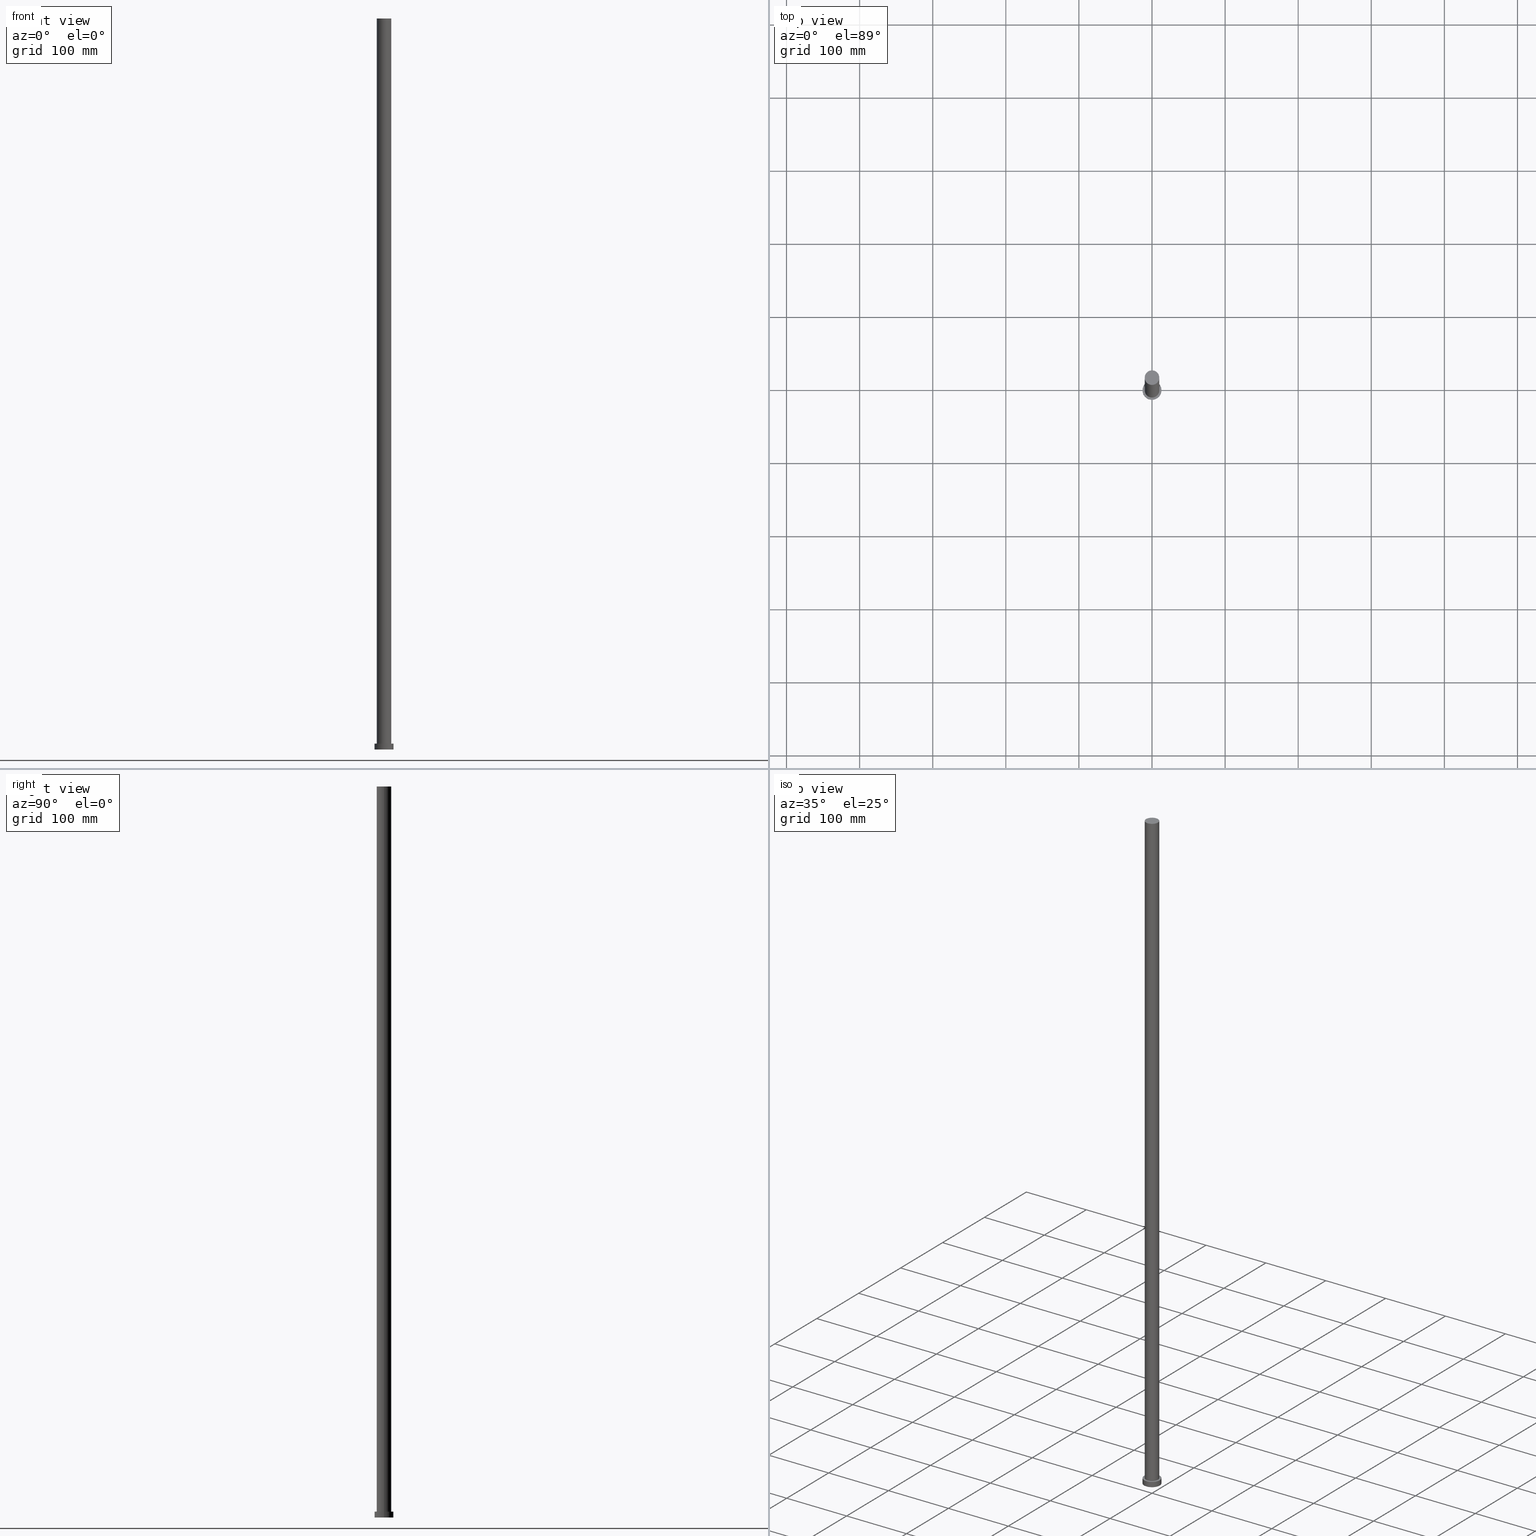
[diagram: canonical four-view strip — front | top / right | iso, engineering-drawing reading convention]
A machine part, canonical four-view strip (front | top / right | iso — engineering-drawing reading convention). The complete STEP part file that produces these views, byte-faithful:
ISO-10303-21;
HEADER;
FILE_DESCRIPTION (( 'STEP AP203' ),
    '1' );
FILE_NAME ('5cee.STEP',
    '2023-02-12T10:31:24',
    ( '' ),
    ( '' ),
    'SwSTEP 2.0',
    'SolidWorks 2019',
    '' );
FILE_SCHEMA (( 'CONFIG_CONTROL_DESIGN' ));
ENDSEC;

DATA;
#1 = AXIS2_PLACEMENT_3D ( 'NONE', #79, #9, #141 ) ;
#2 = FACE_OUTER_BOUND ( 'NONE', #104, .T. ) ;
#3 = LINE ( 'NONE', #207, #132 ) ;
#4 = APPROVAL_STATUS ( 'not_yet_approved' ) ;
#5 = APPLICATION_CONTEXT ( 'configuration controlled 3d designs of mechanical parts and assemblies' ) ;
#6 = DIRECTION ( 'NONE',  ( 1.000000000000000000, 0.000000000000000000, 0.000000000000000000 ) ) ;
#7 =( NAMED_UNIT ( * ) PLANE_ANGLE_UNIT ( ) SI_UNIT ( $, .RADIAN. ) );
#8 = PRODUCT_DEFINITION_FORMATION_WITH_SPECIFIED_SOURCE ( 'LIBOVOLN�', '', #222, .NOT_KNOWN. ) ;
#9 = DIRECTION ( 'NONE',  ( -0.000000000000000000, -0.000000000000000000, -1.000000000000000000 ) ) ;
#10 = CC_DESIGN_DATE_AND_TIME_ASSIGNMENT ( #100, #11, ( #211 ) ) ;
#11 = DATE_TIME_ROLE ( 'creation_date' ) ;
#12 = CARTESIAN_POINT ( 'NONE',  ( 0.000000000000000000, 0.000000000000000000, 8.000000000000000000 ) ) ;
#13 = CARTESIAN_POINT ( 'NONE',  ( 13.00000000000000178, 1.592040838891559293E-15, 0.000000000000000000 ) ) ;
#14 = VECTOR ( 'NONE', #244, 1000.000000000000000 ) ;
#15 = PLANE ( 'NONE',  #250 ) ;
#16 = CARTESIAN_POINT ( 'NONE',  ( -10.00000000000000000, 0.000000000000000000, 1000.000000000000000 ) ) ;
#17 = ORIENTED_EDGE ( 'NONE', *, *, #34, .T. ) ;
#18 = VECTOR ( 'NONE', #242, 1000.000000000000000 ) ;
#19 = EDGE_LOOP ( 'NONE', ( #36, #111 ) ) ;
#20 = DIRECTION ( 'NONE',  ( 0.000000000000000000, 0.000000000000000000, 1.000000000000000000 ) ) ;
#21 = CC_DESIGN_PERSON_AND_ORGANIZATION_ASSIGNMENT ( #160, #131, ( #222 ) ) ;
#22 = ORIENTED_EDGE ( 'NONE', *, *, #89, .F. ) ;
#23 = PERSON_AND_ORGANIZATION ( #213, #173 ) ;
#24 = AXIS2_PLACEMENT_3D ( 'NONE', #139, #47, #115 ) ;
#25 = CC_DESIGN_APPROVAL ( #93, ( #211 ) ) ;
#26 = LINE ( 'NONE', #166, #14 ) ;
#27 = PERSON_AND_ORGANIZATION ( #213, #173 ) ;
#28 = AXIS2_PLACEMENT_3D ( 'NONE', #67, #227, #91 ) ;
#29 = AXIS2_PLACEMENT_3D ( 'NONE', #75, #174, #235 ) ;
#30 = EDGE_CURVE ( 'NONE', #95, #156, #3, .T. ) ;
#31 = CALENDAR_DATE ( 2023, 12, 2 ) ;
#32 = ADVANCED_BREP_SHAPE_REPRESENTATION ( '5cee', ( #240, #106 ), #108 ) ;
#33 = DIRECTION ( 'NONE',  ( 1.000000000000000000, 0.000000000000000000, -0.000000000000000000 ) ) ;
#34 = EDGE_CURVE ( 'NONE', #153, #130, #162, .T. ) ;
#35 = PLANE ( 'NONE',  #233 ) ;
#36 = ORIENTED_EDGE ( 'NONE', *, *, #232, .T. ) ;
#37 = DIRECTION ( 'NONE',  ( 0.000000000000000000, 0.000000000000000000, 1.000000000000000000 ) ) ;
#38 = CARTESIAN_POINT ( 'NONE',  ( 0.000000000000000000, 0.000000000000000000, 1000.000000000000000 ) ) ;
#39 = ORIENTED_EDGE ( 'NONE', *, *, #46, .F. ) ;
#40 = EDGE_CURVE ( 'NONE', #197, #187, #110, .T. ) ;
#41 = ORIENTED_EDGE ( 'NONE', *, *, #40, .T. ) ;
#42 = CARTESIAN_POINT ( 'NONE',  ( -10.00000000000000000, 0.000000000000000000, 1000.000000000000000 ) ) ;
#43 = CYLINDRICAL_SURFACE ( 'NONE', #1, 13.00000000000000178 ) ;
#44 = ORIENTED_EDGE ( 'NONE', *, *, #167, .T. ) ;
#45 = CARTESIAN_POINT ( 'NONE',  ( 0.000000000000000000, 0.000000000000000000, 1000.000000000000000 ) ) ;
#46 = EDGE_CURVE ( 'NONE', #181, #220, #26, .T. ) ;
#47 = DIRECTION ( 'NONE',  ( 0.000000000000000000, 0.000000000000000000, 1.000000000000000000 ) ) ;
#48 = MECHANICAL_CONTEXT ( 'NONE', #5, 'mechanical' ) ;
#49 = ADVANCED_FACE ( 'NONE', ( #2 ), #225, .T. ) ;
#50 = DATE_AND_TIME ( #31, #114 ) ;
#51 = CALENDAR_DATE ( 2023, 12, 2 ) ;
#52 = CARTESIAN_POINT ( 'NONE',  ( 0.000000000000000000, 0.000000000000000000, 0.000000000000000000 ) ) ;
#53 = DIRECTION ( 'NONE',  ( -1.000000000000000000, 0.000000000000000000, 0.000000000000000000 ) ) ;
#54 = CARTESIAN_POINT ( 'NONE',  ( -13.00000000000000178, 0.000000000000000000, 0.000000000000000000 ) ) ;
#55 = CC_DESIGN_PERSON_AND_ORGANIZATION_ASSIGNMENT ( #120, #101, ( #211 ) ) ;
#56 = ORIENTED_EDGE ( 'NONE', *, *, #73, .T. ) ;
#57 = APPLICATION_PROTOCOL_DEFINITION ( 'international standard', 'config_control_design', 1994, #5 ) ;
#58 = CARTESIAN_POINT ( 'NONE',  ( 0.000000000000000000, 0.000000000000000000, 0.000000000000000000 ) ) ;
#59 = DIRECTION ( 'NONE',  ( 0.000000000000000000, 0.000000000000000000, 1.000000000000000000 ) ) ;
#60 = EDGE_LOOP ( 'NONE', ( #241, #126 ) ) ;
#61 = APPROVAL ( #149, 'NEUR�EN�' ) ;
#62 = DIRECTION ( 'NONE',  ( 1.000000000000000000, 0.000000000000000000, 0.000000000000000000 ) ) ;
#63 = APPROVAL_PERSON_ORGANIZATION ( #27, #93, #117 ) ;
#64 = CARTESIAN_POINT ( 'NONE',  ( -13.00000000000000178, 0.000000000000000000, 8.000000000000000000 ) ) ;
#65 = AXIS2_PLACEMENT_3D ( 'NONE', #86, #37, #201 ) ;
#66 = CIRCLE ( 'NONE', #28, 10.00000000000000000 ) ;
#67 = CARTESIAN_POINT ( 'NONE',  ( 0.000000000000000000, 0.000000000000000000, 8.000000000000000000 ) ) ;
#68 = DIRECTION ( 'NONE',  ( 0.000000000000000000, 0.000000000000000000, 1.000000000000000000 ) ) ;
#69 = APPROVAL_ROLE ( '' ) ;
#70 = CIRCLE ( 'NONE', #65, 13.00000000000000178 ) ;
#71 = FACE_OUTER_BOUND ( 'NONE', #87, .T. ) ;
#72 = CIRCLE ( 'NONE', #98, 13.00000000000000178 ) ;
#73 = EDGE_CURVE ( 'NONE', #181, #153, #102, .T. ) ;
#74 = FACE_BOUND ( 'NONE', #178, .T. ) ;
#75 = CARTESIAN_POINT ( 'NONE',  ( 0.000000000000000000, 0.000000000000000000, 0.000000000000000000 ) ) ;
#76 = ORIENTED_EDGE ( 'NONE', *, *, #30, .T. ) ;
#77 = LOCAL_TIME ( 11, 31, 24.00000000000000000, #140 ) ;
#78 = PERSON_AND_ORGANIZATION_ROLE ( 'design_supplier' ) ;
#79 = CARTESIAN_POINT ( 'NONE',  ( 0.000000000000000000, 0.000000000000000000, 8.000000000000000000 ) ) ;
#80 = AXIS2_PLACEMENT_3D ( 'NONE', #52, #214, #33 ) ;
#81 = COORDINATED_UNIVERSAL_TIME_OFFSET ( 1, 0, .AHEAD. ) ;
#82 = PERSON_AND_ORGANIZATION ( #213, #173 ) ;
#83 = AXIS2_PLACEMENT_3D ( 'NONE', #253, #129, #53 ) ;
#84 = PERSON_AND_ORGANIZATION ( #213, #173 ) ;
#85 = EDGE_CURVE ( 'NONE', #130, #220, #66, .T. ) ;
#86 = CARTESIAN_POINT ( 'NONE',  ( 0.000000000000000000, 0.000000000000000000, 0.000000000000000000 ) ) ;
#87 = EDGE_LOOP ( 'NONE', ( #254, #205, #41, #44 ) ) ;
#88 = CYLINDRICAL_SURFACE ( 'NONE', #83, 13.00000000000000178 ) ;
#89 = EDGE_CURVE ( 'NONE', #153, #181, #177, .T. ) ;
#90 = ORIENTED_EDGE ( 'NONE', *, *, #85, .T. ) ;
#91 = DIRECTION ( 'NONE',  ( 1.000000000000000000, 0.000000000000000000, 0.000000000000000000 ) ) ;
#92 = PRODUCT_DEFINITION_SHAPE ( 'NONE', 'NONE',  #211 ) ;
#93 = APPROVAL ( #4, 'NEUR�EN�' ) ;
#94 = AXIS2_PLACEMENT_3D ( 'NONE', #45, #210, #109 ) ;
#95 = VERTEX_POINT ( 'NONE', #212 ) ;
#96 = SECURITY_CLASSIFICATION_LEVEL ( 'unclassified' ) ;
#97 = CARTESIAN_POINT ( 'NONE',  ( 0.000000000000000000, 0.000000000000000000, 1000.000000000000000 ) ) ;
#98 = AXIS2_PLACEMENT_3D ( 'NONE', #150, #146, #255 ) ;
#99 = PLANE ( 'NONE',  #80 ) ;
#100 = DATE_AND_TIME ( #51, #209 ) ;
#101 = PERSON_AND_ORGANIZATION_ROLE ( 'creator' ) ;
#102 = CIRCLE ( 'NONE', #186, 10.00000000000000000 ) ;
#103 = CALENDAR_DATE ( 2023, 12, 2 ) ;
#104 = EDGE_LOOP ( 'NONE', ( #39, #22, #17, #90 ) ) ;
#105 = CARTESIAN_POINT ( 'NONE',  ( 0.000000000000000000, 0.000000000000000000, 8.000000000000000000 ) ) ;
#106 = AXIS2_PLACEMENT_3D ( 'NONE', #58, #68, #190 ) ;
#107 = DESIGN_CONTEXT ( 'detailed design', #252, 'design' ) ;
#108 =( GEOMETRIC_REPRESENTATION_CONTEXT ( 3 ) GLOBAL_UNCERTAINTY_ASSIGNED_CONTEXT ( ( #144 ) ) GLOBAL_UNIT_ASSIGNED_CONTEXT ( ( #116, #7, #124 ) ) REPRESENTATION_CONTEXT ( 'NONE', 'WORKASPACE' ) );
#109 = DIRECTION ( 'NONE',  ( -1.000000000000000000, 0.000000000000000000, 0.000000000000000000 ) ) ;
#110 = LINE ( 'NONE', #64, #228 ) ;
#111 = ORIENTED_EDGE ( 'NONE', *, *, #185, .T. ) ;
#112 = APPLICATION_PROTOCOL_DEFINITION ( 'international standard', 'config_control_design', 1994, #252 ) ;
#113 = ORIENTED_EDGE ( 'NONE', *, *, #73, .F. ) ;
#114 = LOCAL_TIME ( 11, 31, 24.00000000000000000, #81 ) ;
#115 = DIRECTION ( 'NONE',  ( 1.000000000000000000, 0.000000000000000000, 0.000000000000000000 ) ) ;
#116 =( LENGTH_UNIT ( ) NAMED_UNIT ( * ) SI_UNIT ( .MILLI., .METRE. ) );
#117 = APPROVAL_ROLE ( '' ) ;
#118 = PERSON_AND_ORGANIZATION ( #213, #173 ) ;
#119 = CC_DESIGN_PERSON_AND_ORGANIZATION_ASSIGNMENT ( #23, #78, ( #8 ) ) ;
#120 = PERSON_AND_ORGANIZATION ( #213, #173 ) ;
#121 = COORDINATED_UNIVERSAL_TIME_OFFSET ( 1, 0, .AHEAD. ) ;
#122 = CARTESIAN_POINT ( 'NONE',  ( -13.00000000000000178, 0.000000000000000000, 8.000000000000000000 ) ) ;
#123 = CARTESIAN_POINT ( 'NONE',  ( 10.00000000000000000, 1.224646799147353256E-15, 8.000000000000000000 ) ) ;
#124 =( NAMED_UNIT ( * ) SI_UNIT ( $, .STERADIAN. ) SOLID_ANGLE_UNIT ( ) );
#125 = DIRECTION ( 'NONE',  ( 1.000000000000000000, 0.000000000000000000, 0.000000000000000000 ) ) ;
#126 = ORIENTED_EDGE ( 'NONE', *, *, #218, .F. ) ;
#127 = DIRECTION ( 'NONE',  ( 1.000000000000000000, 0.000000000000000000, -0.000000000000000000 ) ) ;
#128 = LOCAL_TIME ( 11, 31, 24.00000000000000000, #121 ) ;
#129 = DIRECTION ( 'NONE',  ( -0.000000000000000000, -0.000000000000000000, -1.000000000000000000 ) ) ;
#130 = VERTEX_POINT ( 'NONE', #143 ) ;
#131 = PERSON_AND_ORGANIZATION_ROLE ( 'design_owner' ) ;
#132 = VECTOR ( 'NONE', #189, 1000.000000000000000 ) ;
#133 = ORIENTED_EDGE ( 'NONE', *, *, #218, .T. ) ;
#134 = CIRCLE ( 'NONE', #29, 13.00000000000000178 ) ;
#135 = ORIENTED_EDGE ( 'NONE', *, *, #34, .F. ) ;
#136 = ADVANCED_FACE ( 'NONE', ( #171 ), #35, .T. ) ;
#137 = DIRECTION ( 'NONE',  ( -0.000000000000000000, -0.000000000000000000, -1.000000000000000000 ) ) ;
#138 = CALENDAR_DATE ( 2023, 12, 2 ) ;
#139 = CARTESIAN_POINT ( 'NONE',  ( 0.000000000000000000, 0.000000000000000000, 1000.000000000000000 ) ) ;
#140 = COORDINATED_UNIVERSAL_TIME_OFFSET ( 1, 0, .AHEAD. ) ;
#141 = DIRECTION ( 'NONE',  ( -1.000000000000000000, 0.000000000000000000, 0.000000000000000000 ) ) ;
#142 = ADVANCED_FACE ( 'NONE', ( #219 ), #248, .T. ) ;
#143 = CARTESIAN_POINT ( 'NONE',  ( -10.00000000000000000, 0.000000000000000000, 8.000000000000000000 ) ) ;
#144 = UNCERTAINTY_MEASURE_WITH_UNIT (LENGTH_MEASURE( 1.000000000000000082E-05 ), #116, 'distance_accuracy_value', 'NONE');
#145 = COORDINATED_UNIVERSAL_TIME_OFFSET ( 1, 0, .AHEAD. ) ;
#146 = DIRECTION ( 'NONE',  ( 0.000000000000000000, 0.000000000000000000, 1.000000000000000000 ) ) ;
#147 = DIRECTION ( 'NONE',  ( -1.000000000000000000, 0.000000000000000000, 0.000000000000000000 ) ) ;
#148 = APPROVAL_PERSON_ORGANIZATION ( #175, #61, #69 ) ;
#149 = APPROVAL_STATUS ( 'not_yet_approved' ) ;
#150 = CARTESIAN_POINT ( 'NONE',  ( 0.000000000000000000, 0.000000000000000000, 8.000000000000000000 ) ) ;
#151 = ORIENTED_EDGE ( 'NONE', *, *, #234, .F. ) ;
#152 = PERSON_AND_ORGANIZATION_ROLE ( 'creator' ) ;
#153 = VERTEX_POINT ( 'NONE', #16 ) ;
#154 = APPROVAL_DATE_TIME ( #159, #61 ) ;
#155 = CC_DESIGN_DATE_AND_TIME_ASSIGNMENT ( #170, #216, ( #198 ) ) ;
#156 = VERTEX_POINT ( 'NONE', #13 ) ;
#157 = LOCAL_TIME ( 11, 31, 24.00000000000000000, #163 ) ;
#158 = CARTESIAN_POINT ( 'NONE',  ( 0.000000000000000000, 0.000000000000000000, 1000.000000000000000 ) ) ;
#159 = DATE_AND_TIME ( #103, #128 ) ;
#160 = PERSON_AND_ORGANIZATION ( #213, #173 ) ;
#161 = ORIENTED_EDGE ( 'NONE', *, *, #185, .F. ) ;
#162 = LINE ( 'NONE', #42, #18 ) ;
#163 = COORDINATED_UNIVERSAL_TIME_OFFSET ( 1, 0, .AHEAD. ) ;
#164 = CARTESIAN_POINT ( 'NONE',  ( 0.000000000000000000, 0.000000000000000000, 8.000000000000000000 ) ) ;
#165 = ADVANCED_FACE ( 'NONE', ( #71 ), #88, .T. ) ;
#166 = CARTESIAN_POINT ( 'NONE',  ( 10.00000000000000000, 1.224646799147353256E-15, 1000.000000000000000 ) ) ;
#167 = EDGE_CURVE ( 'NONE', #187, #156, #70, .T. ) ;
#168 = CARTESIAN_POINT ( 'NONE',  ( 10.00000000000000000, 1.224646799147353256E-15, 1000.000000000000000 ) ) ;
#169 = APPROVAL_DATE_TIME ( #231, #93 ) ;
#170 = DATE_AND_TIME ( #230, #77 ) ;
#171 = FACE_OUTER_BOUND ( 'NONE', #236, .T. ) ;
#172 = APPROVAL_ROLE ( '' ) ;
#173 = ORGANIZATION ( 'NEUR�EN�', 'NEUR�EN�', '' ) ;
#174 = DIRECTION ( 'NONE',  ( 0.000000000000000000, 0.000000000000000000, 1.000000000000000000 ) ) ;
#175 = PERSON_AND_ORGANIZATION ( #213, #173 ) ;
#176 = DIRECTION ( 'NONE',  ( 1.000000000000000000, 0.000000000000000000, -0.000000000000000000 ) ) ;
#177 = CIRCLE ( 'NONE', #24, 10.00000000000000000 ) ;
#178 = EDGE_LOOP ( 'NONE', ( #249, #151 ) ) ;
#179 = CIRCLE ( 'NONE', #206, 10.00000000000000000 ) ;
#180 = CIRCLE ( 'NONE', #226, 13.00000000000000178 ) ;
#181 = VERTEX_POINT ( 'NONE', #168 ) ;
#182 = CC_DESIGN_PERSON_AND_ORGANIZATION_ASSIGNMENT ( #84, #152, ( #8 ) ) ;
#183 = DIRECTION ( 'NONE',  ( 0.000000000000000000, 0.000000000000000000, 1.000000000000000000 ) ) ;
#184 = AXIS2_PLACEMENT_3D ( 'NONE', #38, #199, #147 ) ;
#185 = EDGE_CURVE ( 'NONE', #95, #197, #72, .T. ) ;
#186 = AXIS2_PLACEMENT_3D ( 'NONE', #97, #188, #6 ) ;
#187 = VERTEX_POINT ( 'NONE', #54 ) ;
#188 = DIRECTION ( 'NONE',  ( 0.000000000000000000, 0.000000000000000000, 1.000000000000000000 ) ) ;
#189 = DIRECTION ( 'NONE',  ( -0.000000000000000000, -0.000000000000000000, -1.000000000000000000 ) ) ;
#190 = DIRECTION ( 'NONE',  ( 1.000000000000000000, 0.000000000000000000, 0.000000000000000000 ) ) ;
#191 = CLOSED_SHELL ( 'NONE', ( #142, #237, #165, #196, #247, #49, #136 ) ) ;
#192 = CC_DESIGN_APPROVAL ( #61, ( #198 ) ) ;
#193 = APPROVAL_DATE_TIME ( #50, #223 ) ;
#194 = ORIENTED_EDGE ( 'NONE', *, *, #89, .T. ) ;
#195 = DIRECTION ( 'NONE',  ( 0.000000000000000000, 0.000000000000000000, 1.000000000000000000 ) ) ;
#196 = ADVANCED_FACE ( 'NONE', ( #74, #239 ), #15, .T. ) ;
#197 = VERTEX_POINT ( 'NONE', #122 ) ;
#198 = SECURITY_CLASSIFICATION ( '', '', #96 ) ;
#199 = DIRECTION ( 'NONE',  ( -0.000000000000000000, -0.000000000000000000, -1.000000000000000000 ) ) ;
#200 = ORIENTED_EDGE ( 'NONE', *, *, #234, .T. ) ;
#201 = DIRECTION ( 'NONE',  ( 1.000000000000000000, 0.000000000000000000, 0.000000000000000000 ) ) ;
#202 = ORIENTED_EDGE ( 'NONE', *, *, #46, .T. ) ;
#203 = SHAPE_DEFINITION_REPRESENTATION ( #92, #32 ) ;
#204 = PRODUCT_RELATED_PRODUCT_CATEGORY ( 'detail', '', ( #222 ) ) ;
#205 = ORIENTED_EDGE ( 'NONE', *, *, #232, .F. ) ;
#206 = AXIS2_PLACEMENT_3D ( 'NONE', #164, #20, #62 ) ;
#207 = CARTESIAN_POINT ( 'NONE',  ( 13.00000000000000178, 1.592040838891559293E-15, 8.000000000000000000 ) ) ;
#208 = CC_DESIGN_PERSON_AND_ORGANIZATION_ASSIGNMENT ( #118, #245, ( #198 ) ) ;
#209 = LOCAL_TIME ( 11, 31, 24.00000000000000000, #145 ) ;
#210 = DIRECTION ( 'NONE',  ( -0.000000000000000000, -0.000000000000000000, -1.000000000000000000 ) ) ;
#211 = PRODUCT_DEFINITION ( 'NEZN�M�', '', #8, #107 ) ;
#212 = CARTESIAN_POINT ( 'NONE',  ( 13.00000000000000178, 1.592040838891559293E-15, 8.000000000000000000 ) ) ;
#213 = PERSON ( 'NEUR�EN�', 'NEUR�EN�', 'NEUR�EN�', ('NEUR�EN�'), ('NEUR�EN�'), ('NEUR�EN�') ) ;
#214 = DIRECTION ( 'NONE',  ( 0.000000000000000000, 0.000000000000000000, 1.000000000000000000 ) ) ;
#215 = APPROVAL_STATUS ( 'not_yet_approved' ) ;
#216 = DATE_TIME_ROLE ( 'classification_date' ) ;
#217 = CC_DESIGN_APPROVAL ( #223, ( #8 ) ) ;
#218 = EDGE_CURVE ( 'NONE', #156, #187, #134, .T. ) ;
#219 = FACE_OUTER_BOUND ( 'NONE', #243, .T. ) ;
#220 = VERTEX_POINT ( 'NONE', #123 ) ;
#221 = EDGE_LOOP ( 'NONE', ( #161, #76, #133, #251 ) ) ;
#222 = PRODUCT ( '5cee', '5cee', '', ( #48 ) ) ;
#223 = APPROVAL ( #215, 'NEUR�EN�' ) ;
#224 = FACE_OUTER_BOUND ( 'NONE', #221, .T. ) ;
#225 = CYLINDRICAL_SURFACE ( 'NONE', #94, 10.00000000000000000 ) ;
#226 = AXIS2_PLACEMENT_3D ( 'NONE', #105, #195, #125 ) ;
#227 = DIRECTION ( 'NONE',  ( 0.000000000000000000, 0.000000000000000000, 1.000000000000000000 ) ) ;
#228 = VECTOR ( 'NONE', #137, 1000.000000000000000 ) ;
#229 = CC_DESIGN_SECURITY_CLASSIFICATION ( #198, ( #8 ) ) ;
#230 = CALENDAR_DATE ( 2023, 12, 2 ) ;
#231 = DATE_AND_TIME ( #138, #157 ) ;
#232 = EDGE_CURVE ( 'NONE', #197, #95, #180, .T. ) ;
#233 = AXIS2_PLACEMENT_3D ( 'NONE', #158, #59, #176 ) ;
#234 = EDGE_CURVE ( 'NONE', #220, #130, #179, .T. ) ;
#235 = DIRECTION ( 'NONE',  ( 1.000000000000000000, 0.000000000000000000, 0.000000000000000000 ) ) ;
#236 = EDGE_LOOP ( 'NONE', ( #194, #56 ) ) ;
#237 = ADVANCED_FACE ( 'NONE', ( #224 ), #43, .T. ) ;
#238 = APPROVAL_PERSON_ORGANIZATION ( #82, #223, #172 ) ;
#239 = FACE_OUTER_BOUND ( 'NONE', #19, .T. ) ;
#240 = MANIFOLD_SOLID_BREP ( 'P�idat vysunut�m3', #191 ) ;
#241 = ORIENTED_EDGE ( 'NONE', *, *, #167, .F. ) ;
#242 = DIRECTION ( 'NONE',  ( -0.000000000000000000, -0.000000000000000000, -1.000000000000000000 ) ) ;
#243 = EDGE_LOOP ( 'NONE', ( #113, #202, #200, #135 ) ) ;
#244 = DIRECTION ( 'NONE',  ( -0.000000000000000000, -0.000000000000000000, -1.000000000000000000 ) ) ;
#245 = PERSON_AND_ORGANIZATION_ROLE ( 'classification_officer' ) ;
#246 = FACE_OUTER_BOUND ( 'NONE', #60, .T. ) ;
#247 = ADVANCED_FACE ( 'NONE', ( #246 ), #99, .F. ) ;
#248 = CYLINDRICAL_SURFACE ( 'NONE', #184, 10.00000000000000000 ) ;
#249 = ORIENTED_EDGE ( 'NONE', *, *, #85, .F. ) ;
#250 = AXIS2_PLACEMENT_3D ( 'NONE', #12, #183, #127 ) ;
#251 = ORIENTED_EDGE ( 'NONE', *, *, #40, .F. ) ;
#252 = APPLICATION_CONTEXT ( 'configuration controlled 3d designs of mechanical parts and assemblies' ) ;
#253 = CARTESIAN_POINT ( 'NONE',  ( 0.000000000000000000, 0.000000000000000000, 8.000000000000000000 ) ) ;
#254 = ORIENTED_EDGE ( 'NONE', *, *, #30, .F. ) ;
#255 = DIRECTION ( 'NONE',  ( 1.000000000000000000, 0.000000000000000000, 0.000000000000000000 ) ) ;
ENDSEC;
END-ISO-10303-21;
